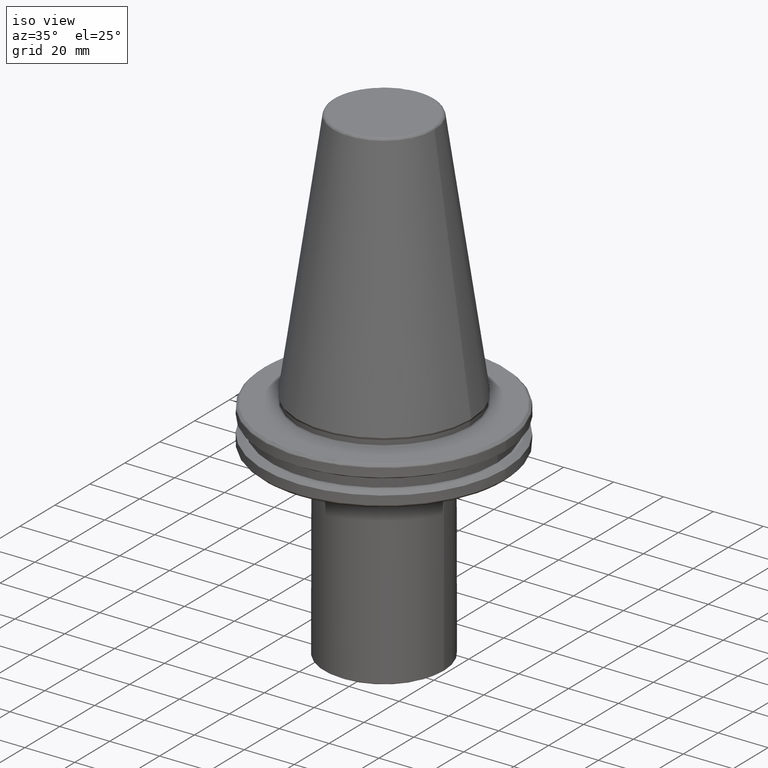
[diagram: clean part render]
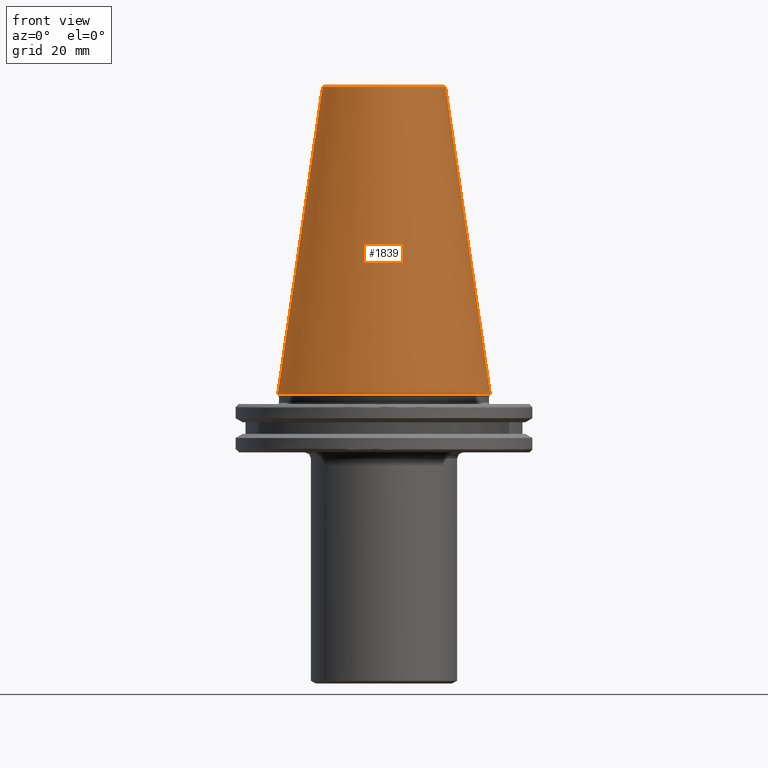
[diagram: tour spotlight — one face highlighted and labeled with its STEP entity id]
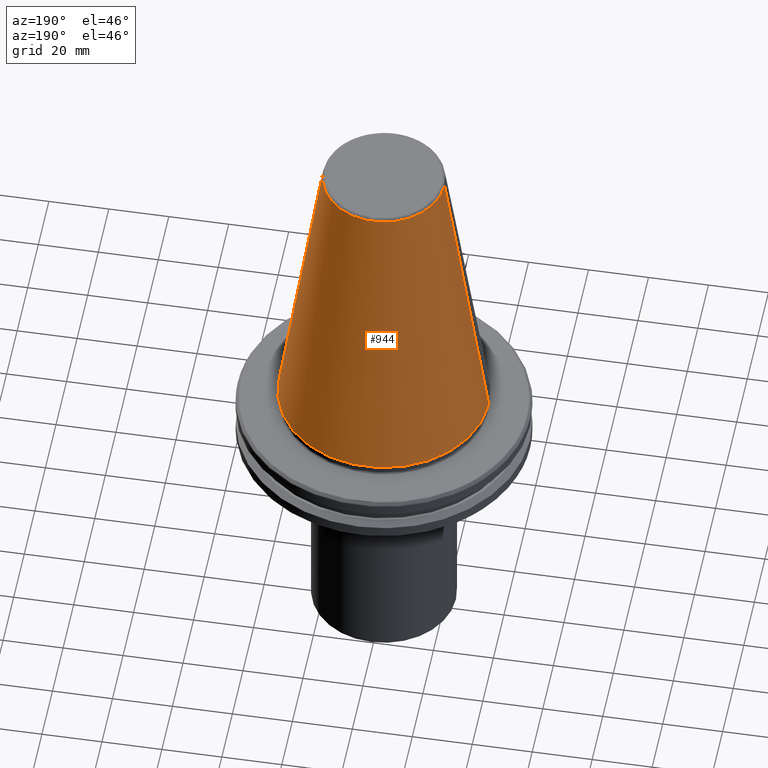
[diagram: tour spotlight — one face highlighted and labeled with its STEP entity id]
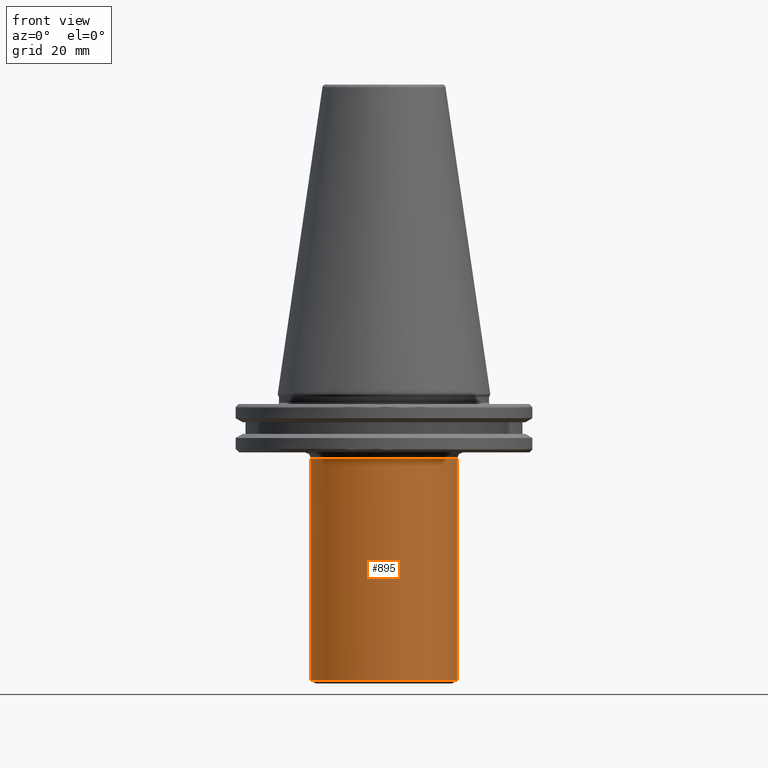
[diagram: tour spotlight — one face highlighted and labeled with its STEP entity id]
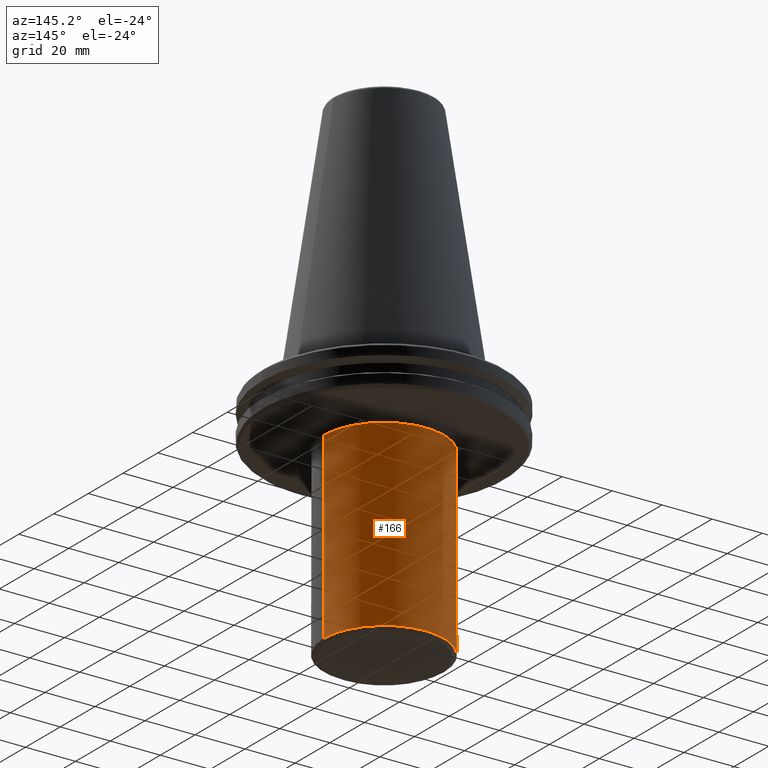
[diagram: tour spotlight — one face highlighted and labeled with its STEP entity id]
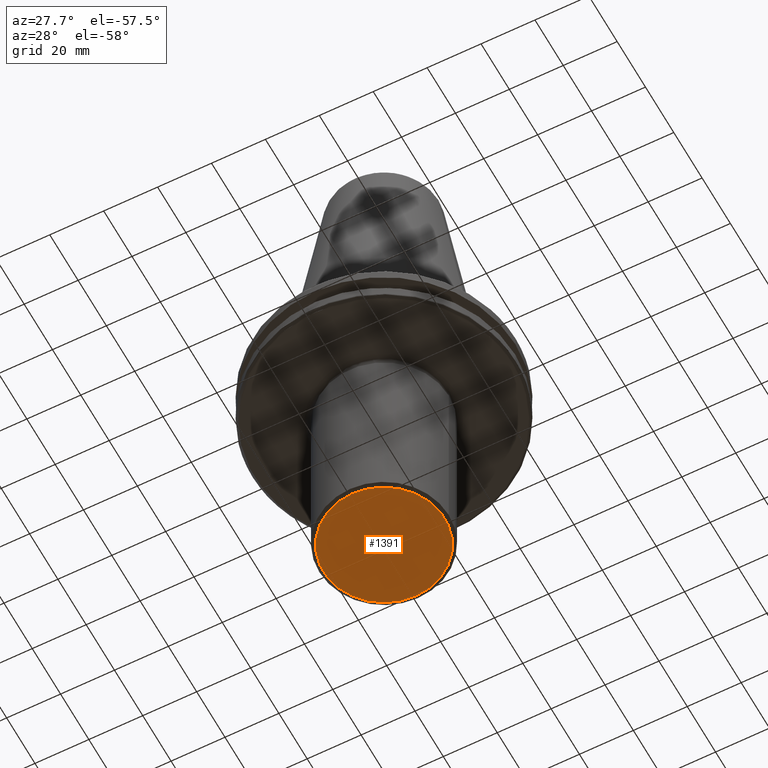
[diagram: tour spotlight — one face highlighted and labeled with its STEP entity id]
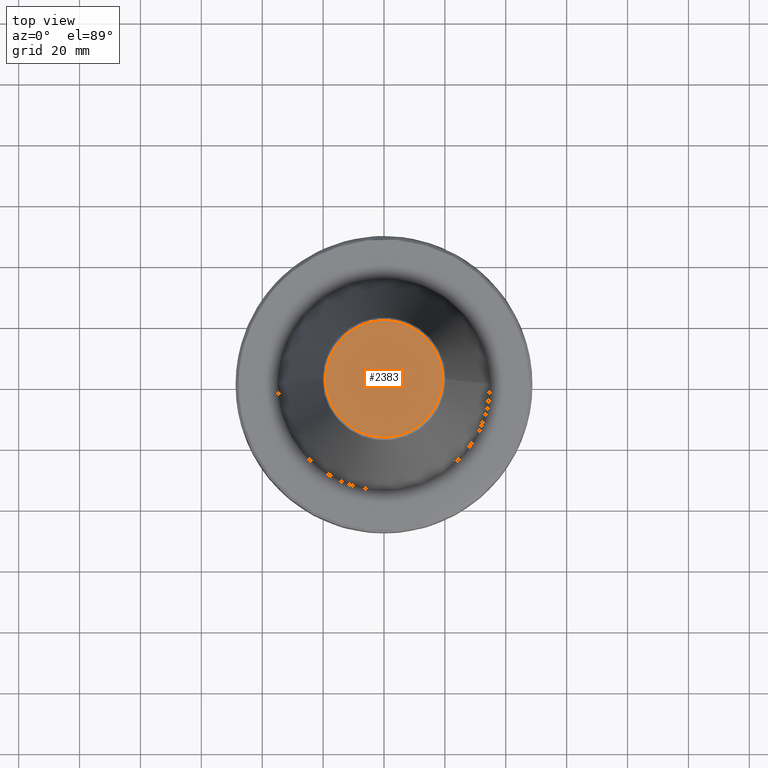
[diagram: tour spotlight — one face highlighted and labeled with its STEP entity id]
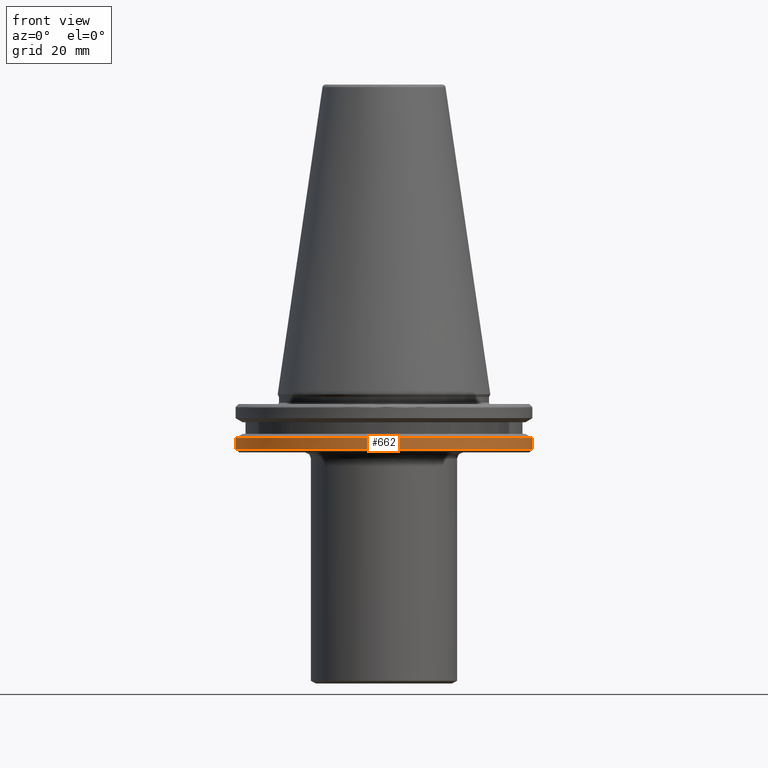
[diagram: tour spotlight — one face highlighted and labeled with its STEP entity id]
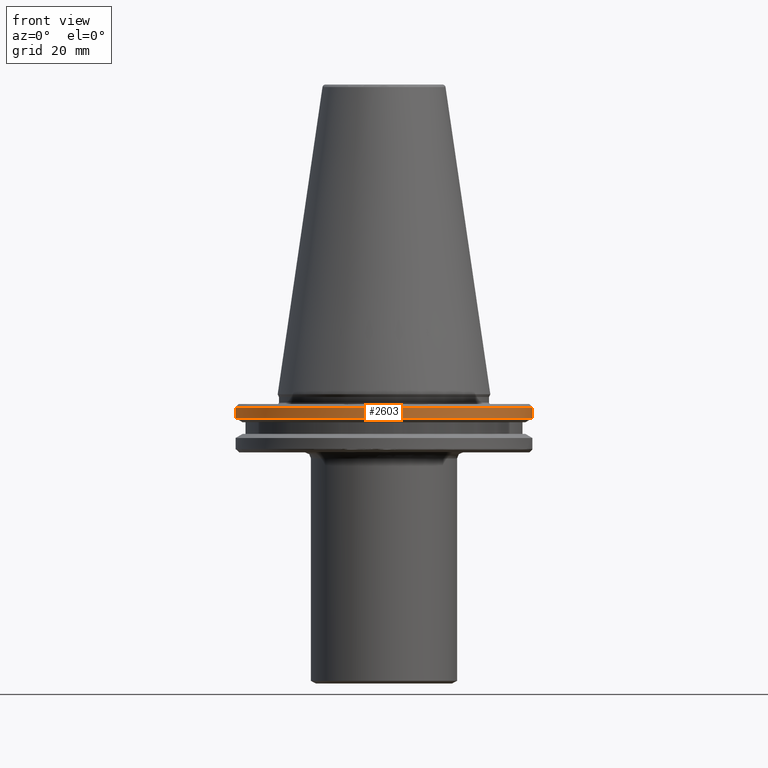
[diagram: tour spotlight — one face highlighted and labeled with its STEP entity id]
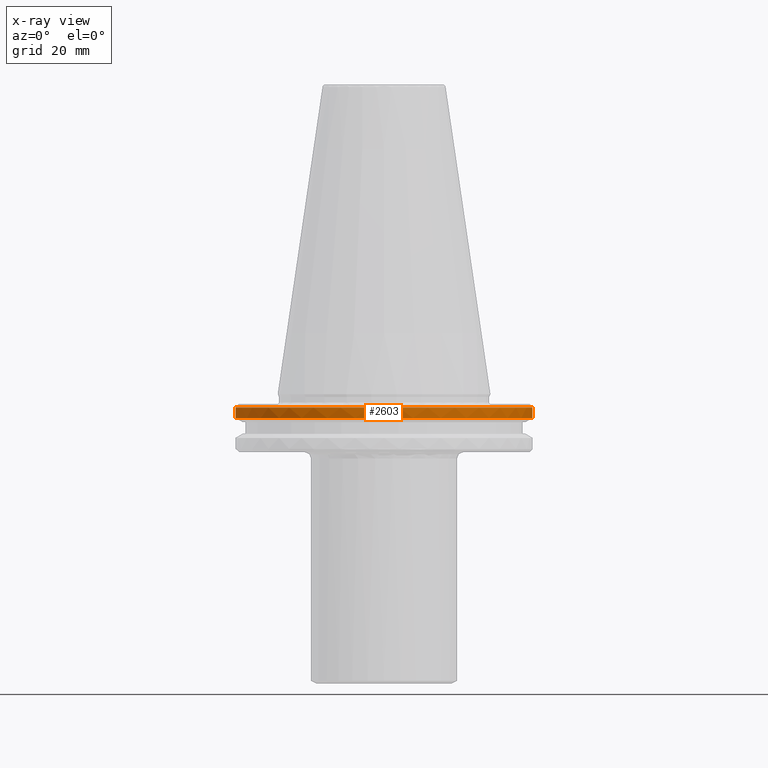
[diagram: x-ray of the same camera — body ghosted, this tour face saturated]
A machine part: a face-by-face anatomy tour. The part has 69 B-rep faces; the first image is the clean iso view, then the 8 largest visible faces are spotlighted one at a time (largest first), each with its STEP entity span.

Face 1 — front view, entity #1839. In plain terms, the highlighted conical surface has half-angle 8.297 deg.
Definition (entity closure, byte-faithful):
#5 = AXIS2_PLACEMENT_3D ( 'NONE', #261, #529, #478 ) ;
#175 = CARTESIAN_POINT ( 'NONE',  ( -34.92499999999999700, 0.0000000000000000000, -1.387778780781445700E-014 ) ) ;
#252 = EDGE_LOOP ( 'NONE', ( #1343, #2592, #1091, #2729 ) ) ;
#261 = CARTESIAN_POINT ( 'NONE',  ( 0.0000000000000000000, 0.0000000000000000000, 0.0000000000000000000 ) ) ;
#301 = DIRECTION ( 'NONE',  ( -1.000000000000000000, 0.0000000000000000000, 0.0000000000000000000 ) ) ;
#419 = EDGE_CURVE ( 'NONE', #2237, #534, #514, .T. ) ;
#478 = DIRECTION ( 'NONE',  ( -1.000000000000000000, 0.0000000000000000000, 0.0000000000000000000 ) ) ;
#514 = CIRCLE ( 'NONE', #2627, 20.21110778703758000 ) ;
#529 = DIRECTION ( 'NONE',  ( -0.0000000000000000000, -0.0000000000000000000, 1.000000000000000000 ) ) ;
#534 = VERTEX_POINT ( 'NONE', #1701 ) ;
#871 = EDGE_CURVE ( 'NONE', #2237, #2218, #2082, .T. ) ;
#1056 = DIRECTION ( 'NONE',  ( 0.0000000000000000000, 0.0000000000000000000, -1.000000000000000000 ) ) ;
#1091 = ORIENTED_EDGE ( 'NONE', *, *, #2355, .T. ) ;
#1318 = CARTESIAN_POINT ( 'NONE',  ( 0.0000000000000000000, 0.0000000000000000000, 100.8943082272673000 ) ) ;
#1343 = ORIENTED_EDGE ( 'NONE', *, *, #871, .F. ) ;
#1367 = CARTESIAN_POINT ( 'NONE',  ( 20.21110778703758000, 3.376112895941951000E-015, 100.8943082272673000 ) ) ;
#1378 = DIRECTION ( 'NONE',  ( 0.0000000000000000000, 0.0000000000000000000, -1.000000000000000000 ) ) ;
#1602 = CARTESIAN_POINT ( 'NONE',  ( 34.92500000000000400, 0.0000000000000000000, 0.0000000000000000000 ) ) ;
#1620 = CARTESIAN_POINT ( 'NONE',  ( 34.92499999999999700, 4.277078946022130900E-015, -1.387778780781445700E-014 ) ) ;
#1701 = CARTESIAN_POINT ( 'NONE',  ( -20.21110778703758000, 0.0000000000000000000, 100.8943082272673000 ) ) ;
#1766 = CIRCLE ( 'NONE', #5, 34.92499999999999700 ) ;
#1803 = DIRECTION ( 'NONE',  ( 0.1443082272673069400, 1.767266086135362400E-017, -0.9895327864921743500 ) ) ;
#1810 = LINE ( 'NONE', #175, #2670 ) ;
#1839 = ADVANCED_FACE ( 'NONE', ( #2974 ), #2280, .T. ) ;
#1922 = DIRECTION ( 'NONE',  ( -0.1443082272673069400, 0.0000000000000000000, -0.9895327864921743500 ) ) ;
#1941 = DIRECTION ( 'NONE',  ( -1.000000000000000000, 0.0000000000000000000, 0.0000000000000000000 ) ) ;
#2049 = EDGE_CURVE ( 'NONE', #2262, #2218, #1766, .T. ) ;
#2082 = LINE ( 'NONE', #1620, #2365 ) ;
#2218 = VERTEX_POINT ( 'NONE', #1602 ) ;
#2237 = VERTEX_POINT ( 'NONE', #1367 ) ;
#2262 = VERTEX_POINT ( 'NONE', #2843 ) ;
#2280 = CONICAL_SURFACE ( 'NONE', #3099, 34.92499999999999700, 0.1448138465474189400 ) ;
#2355 = EDGE_CURVE ( 'NONE', #534, #2262, #1810, .T. ) ;
#2365 = VECTOR ( 'NONE', #1803, 1000.000000000000000 ) ;
#2573 = CARTESIAN_POINT ( 'NONE',  ( 0.0000000000000000000, 0.0000000000000000000, -1.387778780781445700E-014 ) ) ;
#2592 = ORIENTED_EDGE ( 'NONE', *, *, #419, .T. ) ;
#2627 = AXIS2_PLACEMENT_3D ( 'NONE', #1318, #1378, #1941 ) ;
#2670 = VECTOR ( 'NONE', #1922, 1000.000000000000000 ) ;
#2729 = ORIENTED_EDGE ( 'NONE', *, *, #2049, .T. ) ;
#2843 = CARTESIAN_POINT ( 'NONE',  ( -34.92500000000000400, 4.277078946022131700E-015, 0.0000000000000000000 ) ) ;
#2974 = FACE_OUTER_BOUND ( 'NONE', #252, .T. ) ;
#3099 = AXIS2_PLACEMENT_3D ( 'NONE', #2573, #1056, #301 ) ;

Face 2 — auxiliary view, entity #944. In plain terms, the highlighted conical surface has half-angle 8.297 deg.
Definition (entity closure, byte-faithful):
#149 = AXIS2_PLACEMENT_3D ( 'NONE', #1182, #1021, #1152 ) ;
#152 = DIRECTION ( 'NONE',  ( -1.000000000000000000, 0.0000000000000000000, 0.0000000000000000000 ) ) ;
#175 = CARTESIAN_POINT ( 'NONE',  ( -34.92499999999999700, 0.0000000000000000000, -1.387778780781445700E-014 ) ) ;
#296 = CONICAL_SURFACE ( 'NONE', #149, 34.92499999999999700, 0.1448138465474189400 ) ;
#486 = FACE_OUTER_BOUND ( 'NONE', #1255, .T. ) ;
#534 = VERTEX_POINT ( 'NONE', #1701 ) ;
#871 = EDGE_CURVE ( 'NONE', #2237, #2218, #2082, .T. ) ;
#890 = DIRECTION ( 'NONE',  ( -1.000000000000000000, 0.0000000000000000000, 0.0000000000000000000 ) ) ;
#892 = DIRECTION ( 'NONE',  ( 0.0000000000000000000, 0.0000000000000000000, -1.000000000000000000 ) ) ;
#897 = CARTESIAN_POINT ( 'NONE',  ( 0.0000000000000000000, 0.0000000000000000000, 100.8943082272673000 ) ) ;
#935 = CIRCLE ( 'NONE', #1866, 20.21110778703758000 ) ;
#944 = ADVANCED_FACE ( 'NONE', ( #486 ), #296, .T. ) ;
#1021 = DIRECTION ( 'NONE',  ( 0.0000000000000000000, 0.0000000000000000000, -1.000000000000000000 ) ) ;
#1107 = EDGE_CURVE ( 'NONE', #534, #2237, #935, .T. ) ;
#1127 = ORIENTED_EDGE ( 'NONE', *, *, #871, .T. ) ;
#1152 = DIRECTION ( 'NONE',  ( -1.000000000000000000, 0.0000000000000000000, 0.0000000000000000000 ) ) ;
#1182 = CARTESIAN_POINT ( 'NONE',  ( 0.0000000000000000000, 0.0000000000000000000, -1.387778780781445700E-014 ) ) ;
#1185 = CIRCLE ( 'NONE', #2500, 34.92499999999999700 ) ;
#1255 = EDGE_LOOP ( 'NONE', ( #2719, #1127, #2800, #2446 ) ) ;
#1367 = CARTESIAN_POINT ( 'NONE',  ( 20.21110778703758000, 3.376112895941951000E-015, 100.8943082272673000 ) ) ;
#1602 = CARTESIAN_POINT ( 'NONE',  ( 34.92500000000000400, 0.0000000000000000000, 0.0000000000000000000 ) ) ;
#1620 = CARTESIAN_POINT ( 'NONE',  ( 34.92499999999999700, 4.277078946022130900E-015, -1.387778780781445700E-014 ) ) ;
#1649 = DIRECTION ( 'NONE',  ( -0.0000000000000000000, -0.0000000000000000000, 1.000000000000000000 ) ) ;
#1701 = CARTESIAN_POINT ( 'NONE',  ( -20.21110778703758000, 0.0000000000000000000, 100.8943082272673000 ) ) ;
#1803 = DIRECTION ( 'NONE',  ( 0.1443082272673069400, 1.767266086135362400E-017, -0.9895327864921743500 ) ) ;
#1810 = LINE ( 'NONE', #175, #2670 ) ;
#1866 = AXIS2_PLACEMENT_3D ( 'NONE', #897, #892, #890 ) ;
#1922 = DIRECTION ( 'NONE',  ( -0.1443082272673069400, 0.0000000000000000000, -0.9895327864921743500 ) ) ;
#2082 = LINE ( 'NONE', #1620, #2365 ) ;
#2218 = VERTEX_POINT ( 'NONE', #1602 ) ;
#2237 = VERTEX_POINT ( 'NONE', #1367 ) ;
#2262 = VERTEX_POINT ( 'NONE', #2843 ) ;
#2331 = EDGE_CURVE ( 'NONE', #2218, #2262, #1185, .T. ) ;
#2355 = EDGE_CURVE ( 'NONE', #534, #2262, #1810, .T. ) ;
#2365 = VECTOR ( 'NONE', #1803, 1000.000000000000000 ) ;
#2446 = ORIENTED_EDGE ( 'NONE', *, *, #2355, .F. ) ;
#2500 = AXIS2_PLACEMENT_3D ( 'NONE', #3080, #1649, #152 ) ;
#2670 = VECTOR ( 'NONE', #1922, 1000.000000000000000 ) ;
#2719 = ORIENTED_EDGE ( 'NONE', *, *, #1107, .T. ) ;
#2800 = ORIENTED_EDGE ( 'NONE', *, *, #2331, .T. ) ;
#2843 = CARTESIAN_POINT ( 'NONE',  ( -34.92500000000000400, 4.277078946022131700E-015, 0.0000000000000000000 ) ) ;
#3080 = CARTESIAN_POINT ( 'NONE',  ( 0.0000000000000000000, 0.0000000000000000000, 0.0000000000000000000 ) ) ;

Face 3 — front view, entity #895. In plain terms, the highlighted cylindrical surface (partial cylindrical patch) has radius 24 mm, axis along (0, 0, 1).
Definition (entity closure, byte-faithful):
#140 = ORIENTED_EDGE ( 'NONE', *, *, #2535, .T. ) ;
#250 = EDGE_CURVE ( 'NONE', #275, #509, #1837, .T. ) ;
#275 = VERTEX_POINT ( 'NONE', #2179 ) ;
#348 = EDGE_CURVE ( 'NONE', #509, #1484, #2432, .T. ) ;
#428 = CARTESIAN_POINT ( 'NONE',  ( 24.00000000000000700, 0.0000000000000000000, -21.10000000000000900 ) ) ;
#453 = AXIS2_PLACEMENT_3D ( 'NONE', #2018, #2486, #2069 ) ;
#509 = VERTEX_POINT ( 'NONE', #1430 ) ;
#544 = DIRECTION ( 'NONE',  ( 1.000000000000000000, 0.0000000000000000000, 0.0000000000000000000 ) ) ;
#549 = DIRECTION ( 'NONE',  ( 0.0000000000000000000, 0.0000000000000000000, 1.000000000000000000 ) ) ;
#559 = CARTESIAN_POINT ( 'NONE',  ( 0.0000000000000000000, 0.0000000000000000000, -94.13397459621556600 ) ) ;
#629 = AXIS2_PLACEMENT_3D ( 'NONE', #2736, #1260, #2956 ) ;
#766 = CIRCLE ( 'NONE', #629, 24.00000000000000700 ) ;
#849 = VECTOR ( 'NONE', #2472, 1000.000000000000000 ) ;
#857 = ORIENTED_EDGE ( 'NONE', *, *, #2148, .F. ) ;
#860 = CARTESIAN_POINT ( 'NONE',  ( -24.00000000000000000, 2.939152317953647900E-015, -94.13397459621556600 ) ) ;
#885 = FACE_OUTER_BOUND ( 'NONE', #3053, .T. ) ;
#895 = ADVANCED_FACE ( 'NONE', ( #885 ), #2934, .T. ) ;
#1050 = DIRECTION ( 'NONE',  ( 0.0000000000000000000, 0.0000000000000000000, 1.000000000000000000 ) ) ;
#1075 = CIRCLE ( 'NONE', #1242, 24.00000000000000000 ) ;
#1149 = CARTESIAN_POINT ( 'NONE',  ( -24.00000000000000700, 2.939152317953648700E-015, -21.10000000000000900 ) ) ;
#1157 = VERTEX_POINT ( 'NONE', #860 ) ;
#1173 = ORIENTED_EDGE ( 'NONE', *, *, #250, .T. ) ;
#1227 = VECTOR ( 'NONE', #2584, 1000.000000000000000 ) ;
#1242 = AXIS2_PLACEMENT_3D ( 'NONE', #559, #549, #544 ) ;
#1260 = DIRECTION ( 'NONE',  ( 0.0000000000000000000, 0.0000000000000000000, -1.000000000000000000 ) ) ;
#1317 = DIRECTION ( 'NONE',  ( 1.000000000000000000, 0.0000000000000000000, 0.0000000000000000000 ) ) ;
#1376 = EDGE_CURVE ( 'NONE', #1157, #275, #1075, .T. ) ;
#1430 = CARTESIAN_POINT ( 'NONE',  ( 24.00000000000000000, 0.0000000000000000000, -94.13397459621556600 ) ) ;
#1448 = ORIENTED_EDGE ( 'NONE', *, *, #348, .T. ) ;
#1484 = VERTEX_POINT ( 'NONE', #428 ) ;
#1488 = VERTEX_POINT ( 'NONE', #1149 ) ;
#1837 = CIRCLE ( 'NONE', #453, 24.00000000000000000 ) ;
#2018 = CARTESIAN_POINT ( 'NONE',  ( 0.0000000000000000000, 0.0000000000000000000, -94.13397459621556600 ) ) ;
#2019 = ORIENTED_EDGE ( 'NONE', *, *, #1376, .T. ) ;
#2069 = DIRECTION ( 'NONE',  ( 1.000000000000000000, 0.0000000000000000000, 0.0000000000000000000 ) ) ;
#2099 = CARTESIAN_POINT ( 'NONE',  ( -24.00000000000000000, 2.939152317953647900E-015, 0.0000000000000000000 ) ) ;
#2148 = EDGE_CURVE ( 'NONE', #1157, #1488, #2501, .T. ) ;
#2151 = AXIS2_PLACEMENT_3D ( 'NONE', #2728, #1050, #1317 ) ;
#2179 = CARTESIAN_POINT ( 'NONE',  ( 0.0000000000000000000, -24.00000000000002500, -94.13397459621556600 ) ) ;
#2432 = LINE ( 'NONE', #2488, #849 ) ;
#2472 = DIRECTION ( 'NONE',  ( 0.0000000000000000000, 0.0000000000000000000, 1.000000000000000000 ) ) ;
#2486 = DIRECTION ( 'NONE',  ( 0.0000000000000000000, 0.0000000000000000000, 1.000000000000000000 ) ) ;
#2488 = CARTESIAN_POINT ( 'NONE',  ( 24.00000000000000000, 0.0000000000000000000, 0.0000000000000000000 ) ) ;
#2501 = LINE ( 'NONE', #2099, #1227 ) ;
#2535 = EDGE_CURVE ( 'NONE', #1484, #1488, #766, .T. ) ;
#2584 = DIRECTION ( 'NONE',  ( 0.0000000000000000000, 0.0000000000000000000, 1.000000000000000000 ) ) ;
#2728 = CARTESIAN_POINT ( 'NONE',  ( 0.0000000000000000000, 0.0000000000000000000, 0.0000000000000000000 ) ) ;
#2736 = CARTESIAN_POINT ( 'NONE',  ( 0.0000000000000000000, 0.0000000000000000000, -21.10000000000000900 ) ) ;
#2934 = CYLINDRICAL_SURFACE ( 'NONE', #2151, 24.00000000000000000 ) ;
#2956 = DIRECTION ( 'NONE',  ( -1.000000000000000000, 0.0000000000000000000, 0.0000000000000000000 ) ) ;
#3053 = EDGE_LOOP ( 'NONE', ( #857, #2019, #1173, #1448, #140 ) ) ;

Face 4 — auxiliary view, entity #166. In plain terms, the highlighted cylindrical surface (partial cylindrical patch) has radius 24 mm, axis along (0, 0, 1).
Definition (entity closure, byte-faithful):
#129 = AXIS2_PLACEMENT_3D ( 'NONE', #1897, #2008, #1581 ) ;
#166 = ADVANCED_FACE ( 'NONE', ( #2375 ), #776, .T. ) ;
#315 = AXIS2_PLACEMENT_3D ( 'NONE', #2393, #911, #2631 ) ;
#348 = EDGE_CURVE ( 'NONE', #509, #1484, #2432, .T. ) ;
#428 = CARTESIAN_POINT ( 'NONE',  ( 24.00000000000000700, 0.0000000000000000000, -21.10000000000000900 ) ) ;
#509 = VERTEX_POINT ( 'NONE', #1430 ) ;
#661 = CIRCLE ( 'NONE', #2538, 24.00000000000000000 ) ;
#697 = DIRECTION ( 'NONE',  ( 0.0000000000000000000, 0.0000000000000000000, 1.000000000000000000 ) ) ;
#776 = CYLINDRICAL_SURFACE ( 'NONE', #129, 24.00000000000000000 ) ;
#823 = ORIENTED_EDGE ( 'NONE', *, *, #2348, .T. ) ;
#849 = VECTOR ( 'NONE', #2472, 1000.000000000000000 ) ;
#860 = CARTESIAN_POINT ( 'NONE',  ( -24.00000000000000000, 2.939152317953647900E-015, -94.13397459621556600 ) ) ;
#911 = DIRECTION ( 'NONE',  ( 0.0000000000000000000, 0.0000000000000000000, 1.000000000000000000 ) ) ;
#932 = EDGE_CURVE ( 'NONE', #1488, #1484, #3027, .T. ) ;
#1010 = DIRECTION ( 'NONE',  ( -1.000000000000000000, 0.0000000000000000000, 0.0000000000000000000 ) ) ;
#1014 = DIRECTION ( 'NONE',  ( 0.0000000000000000000, 0.0000000000000000000, -1.000000000000000000 ) ) ;
#1018 = CARTESIAN_POINT ( 'NONE',  ( 0.0000000000000000000, 0.0000000000000000000, -21.10000000000000900 ) ) ;
#1149 = CARTESIAN_POINT ( 'NONE',  ( -24.00000000000000700, 2.939152317953648700E-015, -21.10000000000000900 ) ) ;
#1157 = VERTEX_POINT ( 'NONE', #860 ) ;
#1227 = VECTOR ( 'NONE', #2584, 1000.000000000000000 ) ;
#1389 = EDGE_LOOP ( 'NONE', ( #1963, #3093, #2688, #2673, #823 ) ) ;
#1430 = CARTESIAN_POINT ( 'NONE',  ( 24.00000000000000000, 0.0000000000000000000, -94.13397459621556600 ) ) ;
#1484 = VERTEX_POINT ( 'NONE', #428 ) ;
#1488 = VERTEX_POINT ( 'NONE', #1149 ) ;
#1581 = DIRECTION ( 'NONE',  ( 1.000000000000000000, 0.0000000000000000000, 0.0000000000000000000 ) ) ;
#1650 = CARTESIAN_POINT ( 'NONE',  ( 2.939152317953644700E-015, 23.99999999999997500, -94.13397459621556600 ) ) ;
#1897 = CARTESIAN_POINT ( 'NONE',  ( 0.0000000000000000000, 0.0000000000000000000, 0.0000000000000000000 ) ) ;
#1963 = ORIENTED_EDGE ( 'NONE', *, *, #2259, .T. ) ;
#2008 = DIRECTION ( 'NONE',  ( 0.0000000000000000000, 0.0000000000000000000, 1.000000000000000000 ) ) ;
#2099 = CARTESIAN_POINT ( 'NONE',  ( -24.00000000000000000, 2.939152317953647900E-015, 0.0000000000000000000 ) ) ;
#2148 = EDGE_CURVE ( 'NONE', #1157, #1488, #2501, .T. ) ;
#2183 = CARTESIAN_POINT ( 'NONE',  ( 0.0000000000000000000, 0.0000000000000000000, -94.13397459621556600 ) ) ;
#2211 = AXIS2_PLACEMENT_3D ( 'NONE', #1018, #1014, #1010 ) ;
#2259 = EDGE_CURVE ( 'NONE', #2978, #1157, #2678, .T. ) ;
#2348 = EDGE_CURVE ( 'NONE', #509, #2978, #661, .T. ) ;
#2375 = FACE_OUTER_BOUND ( 'NONE', #1389, .T. ) ;
#2393 = CARTESIAN_POINT ( 'NONE',  ( 0.0000000000000000000, 0.0000000000000000000, -94.13397459621556600 ) ) ;
#2427 = DIRECTION ( 'NONE',  ( 1.000000000000000000, 0.0000000000000000000, 0.0000000000000000000 ) ) ;
#2432 = LINE ( 'NONE', #2488, #849 ) ;
#2472 = DIRECTION ( 'NONE',  ( 0.0000000000000000000, 0.0000000000000000000, 1.000000000000000000 ) ) ;
#2488 = CARTESIAN_POINT ( 'NONE',  ( 24.00000000000000000, 0.0000000000000000000, 0.0000000000000000000 ) ) ;
#2501 = LINE ( 'NONE', #2099, #1227 ) ;
#2538 = AXIS2_PLACEMENT_3D ( 'NONE', #2183, #697, #2427 ) ;
#2584 = DIRECTION ( 'NONE',  ( 0.0000000000000000000, 0.0000000000000000000, 1.000000000000000000 ) ) ;
#2631 = DIRECTION ( 'NONE',  ( 1.000000000000000000, 0.0000000000000000000, 0.0000000000000000000 ) ) ;
#2673 = ORIENTED_EDGE ( 'NONE', *, *, #348, .F. ) ;
#2678 = CIRCLE ( 'NONE', #315, 24.00000000000000000 ) ;
#2688 = ORIENTED_EDGE ( 'NONE', *, *, #932, .T. ) ;
#2978 = VERTEX_POINT ( 'NONE', #1650 ) ;
#3027 = CIRCLE ( 'NONE', #2211, 24.00000000000000700 ) ;
#3093 = ORIENTED_EDGE ( 'NONE', *, *, #2148, .T. ) ;

Face 5 — auxiliary view, entity #1391. In plain terms, the highlighted planar face has unit normal (0, 0, -1).
Definition (entity closure, byte-faithful):
#99 = CARTESIAN_POINT ( 'NONE',  ( 2.847303808017596500E-015, 22.50000000000000400, -95.00000000000000000 ) ) ;
#276 = FACE_OUTER_BOUND ( 'NONE', #1407, .T. ) ;
#536 = DIRECTION ( 'NONE',  ( -1.000000000000000000, 0.0000000000000000000, -0.0000000000000000000 ) ) ;
#540 = DIRECTION ( 'NONE',  ( 0.0000000000000000000, 0.0000000000000000000, -1.000000000000000000 ) ) ;
#560 = CARTESIAN_POINT ( 'NONE',  ( 0.0000000000000000000, -22.50000000000000000, -95.00000000000000000 ) ) ;
#571 = PLANE ( 'NONE',  #1634 ) ;
#686 = DIRECTION ( 'NONE',  ( 0.0000000000000000000, -2.891205793294678300E-016, 1.000000000000000000 ) ) ;
#1120 = CARTESIAN_POINT ( 'NONE',  ( 0.0000000000000000000, -22.50000000000000400, -95.00000000000000000 ) ) ;
#1206 = AXIS2_PLACEMENT_3D ( 'NONE', #2171, #686, #2420 ) ;
#1391 = ADVANCED_FACE ( 'NONE', ( #276 ), #571, .T. ) ;
#1407 = EDGE_LOOP ( 'NONE', ( #2766, #1595 ) ) ;
#1438 = DIRECTION ( 'NONE',  ( 0.0000000000000000000, -2.891205793294678300E-016, 1.000000000000000000 ) ) ;
#1442 = CIRCLE ( 'NONE', #1206, 22.50000000000000400 ) ;
#1474 = CIRCLE ( 'NONE', #2726, 22.50000000000000400 ) ;
#1595 = ORIENTED_EDGE ( 'NONE', *, *, #2958, .F. ) ;
#1634 = AXIS2_PLACEMENT_3D ( 'NONE', #560, #540, #536 ) ;
#1877 = VERTEX_POINT ( 'NONE', #1120 ) ;
#1948 = VERTEX_POINT ( 'NONE', #99 ) ;
#2171 = CARTESIAN_POINT ( 'NONE',  ( 0.0000000000000000000, 2.503857664561903300E-016, -95.00000000000000000 ) ) ;
#2371 = EDGE_CURVE ( 'NONE', #1877, #1948, #1474, .T. ) ;
#2420 = DIRECTION ( 'NONE',  ( 0.0000000000000000000, -1.000000000000000000, 0.0000000000000000000 ) ) ;
#2726 = AXIS2_PLACEMENT_3D ( 'NONE', #2908, #1438, #3109 ) ;
#2766 = ORIENTED_EDGE ( 'NONE', *, *, #2371, .F. ) ;
#2908 = CARTESIAN_POINT ( 'NONE',  ( 0.0000000000000000000, 2.503857664561903300E-016, -95.00000000000000000 ) ) ;
#2958 = EDGE_CURVE ( 'NONE', #1948, #1877, #1442, .T. ) ;
#3109 = DIRECTION ( 'NONE',  ( 0.0000000000000000000, -1.000000000000000000, 0.0000000000000000000 ) ) ;

Face 6 — top view, entity #2383. In plain terms, the highlighted planar face has unit normal (0, 0, 1).
Definition (entity closure, byte-faithful):
#73 = EDGE_CURVE ( 'NONE', #2016, #552, #2040, .T. ) ;
#187 = DIRECTION ( 'NONE',  ( 1.000000000000000000, 0.0000000000000000000, -0.0000000000000000000 ) ) ;
#552 = VERTEX_POINT ( 'NONE', #1705 ) ;
#596 = FACE_OUTER_BOUND ( 'NONE', #830, .T. ) ;
#694 = CARTESIAN_POINT ( 'NONE',  ( 19.22157500054540000, 0.0000000000000000000, 101.7499999999999900 ) ) ;
#712 = CARTESIAN_POINT ( 'NONE',  ( 19.22157500054540000, 0.0000000000000000000, 101.7499999999999900 ) ) ;
#713 = ORIENTED_EDGE ( 'NONE', *, *, #1213, .F. ) ;
#714 = CARTESIAN_POINT ( 'NONE',  ( 19.22157500054540000, 38.44315000109079300, 101.7500000000000000 ) ) ;
#722 = CARTESIAN_POINT ( 'NONE',  ( 0.0000000000000000000, 7.346249770921763000E-014, 101.7500000000000000 ) ) ;
#738 = CARTESIAN_POINT ( 'NONE',  ( -19.22157500054540000, 2.378200593091452200E-015, 101.7499999999999900 ) ) ;
#767 = CARTESIAN_POINT ( 'NONE',  ( -19.22157500054539600, 38.44315000109079300, 101.7500000000000000 ) ) ;
#830 = EDGE_LOOP ( 'NONE', ( #713, #2105 ) ) ;
#969 = PLANE ( 'NONE',  #1439 ) ;
#1213 = EDGE_CURVE ( 'NONE', #552, #2016, #2110, .T. ) ;
#1439 = AXIS2_PLACEMENT_3D ( 'NONE', #722, #1679, #187 ) ;
#1679 = DIRECTION ( 'NONE',  ( 0.0000000000000000000, 0.0000000000000000000, 1.000000000000000000 ) ) ;
#1705 = CARTESIAN_POINT ( 'NONE',  ( -19.22157500054540000, 2.378200593091452200E-015, 101.7499999999999900 ) ) ;
#2016 = VERTEX_POINT ( 'NONE', #694 ) ;
#2040 =( BOUNDED_CURVE ( )  B_SPLINE_CURVE ( 3, ( #2376, #2660, #3164, #2093 ),
 .UNSPECIFIED., .F., .T. ) 
 B_SPLINE_CURVE_WITH_KNOTS ( ( 4, 4 ),
 ( 0.0000000000000000000, 1.000000000000000000 ),
 .UNSPECIFIED. ) 
 CURVE ( )  GEOMETRIC_REPRESENTATION_ITEM ( )  RATIONAL_B_SPLINE_CURVE ( ( 1.000000000000000000, 0.3333333333333333700, 0.3333333333333333700, 1.000000000000000000 ) ) 
 REPRESENTATION_ITEM ( '' )  );
#2093 = CARTESIAN_POINT ( 'NONE',  ( -19.22157500054540000, 2.378200593091452200E-015, 101.7499999999999900 ) ) ;
#2105 = ORIENTED_EDGE ( 'NONE', *, *, #73, .F. ) ;
#2110 =( BOUNDED_CURVE ( )  B_SPLINE_CURVE ( 3, ( #738, #767, #714, #712 ),
 .UNSPECIFIED., .F., .T. ) 
 B_SPLINE_CURVE_WITH_KNOTS ( ( 4, 4 ),
 ( 0.0000000000000000000, 1.000000000000000000 ),
 .UNSPECIFIED. ) 
 CURVE ( )  GEOMETRIC_REPRESENTATION_ITEM ( )  RATIONAL_B_SPLINE_CURVE ( ( 1.000000000000000000, 0.3333333333333333700, 0.3333333333333333700, 1.000000000000000000 ) ) 
 REPRESENTATION_ITEM ( '' )  );
#2376 = CARTESIAN_POINT ( 'NONE',  ( 19.22157500054540000, 0.0000000000000000000, 101.7499999999999900 ) ) ;
#2383 = ADVANCED_FACE ( 'NONE', ( #596 ), #969, .T. ) ;
#2660 = CARTESIAN_POINT ( 'NONE',  ( 19.22157500054540000, -38.44315000109079300, 101.7500000000000000 ) ) ;
#3164 = CARTESIAN_POINT ( 'NONE',  ( -19.22157500054540000, -38.44315000109079300, 101.7500000000000000 ) ) ;

Face 7 — front view, entity #662. In plain terms, the highlighted cylindrical surface (partial cylindrical patch) has radius 48.75 mm, axis along (0, 0, 1).
Definition (entity closure, byte-faithful):
#110 = DIRECTION ( 'NONE',  ( 1.000000000000000000, 0.0000000000000000000, 0.0000000000000000000 ) ) ;
#153 = AXIS2_PLACEMENT_3D ( 'NONE', #3047, #1599, #110 ) ;
#161 = EDGE_CURVE ( 'NONE', #1269, #468, #701, .T. ) ;
#303 = EDGE_LOOP ( 'NONE', ( #2154, #1831, #1935, #2666, #2827, #2987 ) ) ;
#399 = DIRECTION ( 'NONE',  ( 1.000000000000000000, 0.0000000000000000000, 0.0000000000000000000 ) ) ;
#455 = CARTESIAN_POINT ( 'NONE',  ( 0.0000000000000000000, 0.0000000000000000000, -17.93431457505076300 ) ) ;
#468 = VERTEX_POINT ( 'NONE', #1686 ) ;
#515 = VERTEX_POINT ( 'NONE', #1689 ) ;
#590 = DIRECTION ( 'NONE',  ( -0.0000000000000000000, -0.0000000000000000000, 1.000000000000000000 ) ) ;
#662 = ADVANCED_FACE ( 'NONE', ( #1899 ), #912, .T. ) ;
#687 = CARTESIAN_POINT ( 'NONE',  ( -48.75000000000000000, 5.970153145843347100E-015, -17.93431457505076300 ) ) ;
#701 = LINE ( 'NONE', #2489, #2452 ) ;
#716 = VERTEX_POINT ( 'NONE', #2985 ) ;
#740 = CIRCLE ( 'NONE', #2687, 48.75000000000000000 ) ;
#753 = CARTESIAN_POINT ( 'NONE',  ( 48.75000000000000000, 0.0000000000000000000, 113.5216080541959500 ) ) ;
#891 = CARTESIAN_POINT ( 'NONE',  ( 0.0000000000000000000, 0.0000000000000000000, -14.34759526419166200 ) ) ;
#912 = CYLINDRICAL_SURFACE ( 'NONE', #1145, 48.75000000000000000 ) ;
#996 = DIRECTION ( 'NONE',  ( 0.0000000000000000000, 0.0000000000000000000, 1.000000000000000000 ) ) ;
#1005 = VECTOR ( 'NONE', #996, 1000.000000000000000 ) ;
#1006 = DIRECTION ( 'NONE',  ( 0.0000000000000000000, 0.0000000000000000000, 1.000000000000000000 ) ) ;
#1134 = DIRECTION ( 'NONE',  ( -1.000000000000000000, 0.0000000000000000000, 0.0000000000000000000 ) ) ;
#1145 = AXIS2_PLACEMENT_3D ( 'NONE', #2361, #1925, #2798 ) ;
#1168 = AXIS2_PLACEMENT_3D ( 'NONE', #2492, #1006, #2720 ) ;
#1194 = DIRECTION ( 'NONE',  ( 0.0000000000000000000, 0.0000000000000000000, 1.000000000000000000 ) ) ;
#1269 = VERTEX_POINT ( 'NONE', #687 ) ;
#1477 = VERTEX_POINT ( 'NONE', #2663 ) ;
#1599 = DIRECTION ( 'NONE',  ( -0.0000000000000000000, -0.0000000000000000000, 1.000000000000000000 ) ) ;
#1605 = LINE ( 'NONE', #753, #1005 ) ;
#1648 = CIRCLE ( 'NONE', #1168, 48.75000000000000000 ) ;
#1686 = CARTESIAN_POINT ( 'NONE',  ( -48.75000000000001400, 5.970153145843347900E-015, -14.34759526419166200 ) ) ;
#1689 = CARTESIAN_POINT ( 'NONE',  ( -46.83796378645139000, -13.51915856623735300, -17.93431457505076300 ) ) ;
#1831 = ORIENTED_EDGE ( 'NONE', *, *, #1950, .T. ) ;
#1879 = CARTESIAN_POINT ( 'NONE',  ( 46.87302845420868600, -13.39707817141269400, -17.93431457505076300 ) ) ;
#1899 = FACE_OUTER_BOUND ( 'NONE', #303, .T. ) ;
#1925 = DIRECTION ( 'NONE',  ( 0.0000000000000000000, 0.0000000000000000000, 1.000000000000000000 ) ) ;
#1935 = ORIENTED_EDGE ( 'NONE', *, *, #2451, .T. ) ;
#1950 = EDGE_CURVE ( 'NONE', #1269, #515, #740, .T. ) ;
#2154 = ORIENTED_EDGE ( 'NONE', *, *, #161, .F. ) ;
#2349 = CIRCLE ( 'NONE', #153, 48.75000000000000000 ) ;
#2361 = CARTESIAN_POINT ( 'NONE',  ( 0.0000000000000000000, 0.0000000000000000000, 113.5216080541959500 ) ) ;
#2408 = CIRCLE ( 'NONE', #2714, 48.75000000000000000 ) ;
#2451 = EDGE_CURVE ( 'NONE', #515, #2950, #1648, .T. ) ;
#2452 = VECTOR ( 'NONE', #1194, 1000.000000000000000 ) ;
#2456 = EDGE_CURVE ( 'NONE', #1477, #716, #1605, .T. ) ;
#2489 = CARTESIAN_POINT ( 'NONE',  ( -48.75000000000000000, 5.970153145843347100E-015, 113.5216080541959500 ) ) ;
#2492 = CARTESIAN_POINT ( 'NONE',  ( 0.0000000000000000000, 0.0000000000000000000, -17.93431457505076300 ) ) ;
#2578 = EDGE_CURVE ( 'NONE', #468, #716, #2408, .T. ) ;
#2581 = EDGE_CURVE ( 'NONE', #2950, #1477, #2349, .T. ) ;
#2609 = DIRECTION ( 'NONE',  ( -0.0000000000000000000, -0.0000000000000000000, 1.000000000000000000 ) ) ;
#2663 = CARTESIAN_POINT ( 'NONE',  ( 48.75000000000000000, 0.0000000000000000000, -17.93431457505076300 ) ) ;
#2666 = ORIENTED_EDGE ( 'NONE', *, *, #2581, .T. ) ;
#2687 = AXIS2_PLACEMENT_3D ( 'NONE', #455, #590, #399 ) ;
#2714 = AXIS2_PLACEMENT_3D ( 'NONE', #891, #2609, #1134 ) ;
#2720 = DIRECTION ( 'NONE',  ( 1.000000000000000000, 0.0000000000000000000, 0.0000000000000000000 ) ) ;
#2798 = DIRECTION ( 'NONE',  ( 1.000000000000000000, 0.0000000000000000000, 0.0000000000000000000 ) ) ;
#2827 = ORIENTED_EDGE ( 'NONE', *, *, #2456, .T. ) ;
#2950 = VERTEX_POINT ( 'NONE', #1879 ) ;
#2985 = CARTESIAN_POINT ( 'NONE',  ( 48.75000000000001400, 0.0000000000000000000, -14.34759526419166200 ) ) ;
#2987 = ORIENTED_EDGE ( 'NONE', *, *, #2578, .F. ) ;
#3047 = CARTESIAN_POINT ( 'NONE',  ( 0.0000000000000000000, 0.0000000000000000000, -17.93431457505076300 ) ) ;

Face 8 — front view, entity #2603. An x-ray twin of the same camera follows (body ghosted, this face saturated) — the face is partly hidden behind the body. In plain terms, the highlighted cylindrical surface (partial cylindrical patch) has radius 48.75 mm, axis along (0, 0, 1).
Definition (entity closure, byte-faithful):
#93 = CARTESIAN_POINT ( 'NONE',  ( 0.0000000000000000000, 0.0000000000000000000, -4.365685424949240300 ) ) ;
#162 = ORIENTED_EDGE ( 'NONE', *, *, #2968, .F. ) ;
#225 = CARTESIAN_POINT ( 'NONE',  ( 0.0000000000000000000, 0.0000000000000000000, -4.365685424949236700 ) ) ;
#238 = VERTEX_POINT ( 'NONE', #2880 ) ;
#280 = DIRECTION ( 'NONE',  ( 0.0000000000000000000, 0.0000000000000000000, 1.000000000000000000 ) ) ;
#380 = CYLINDRICAL_SURFACE ( 'NONE', #506, 48.75000000000000000 ) ;
#496 = ORIENTED_EDGE ( 'NONE', *, *, #1510, .F. ) ;
#506 = AXIS2_PLACEMENT_3D ( 'NONE', #2140, #1117, #640 ) ;
#553 = CARTESIAN_POINT ( 'NONE',  ( -48.75000000000000000, 5.970153145843347100E-015, -4.365685424949236700 ) ) ;
#574 = DIRECTION ( 'NONE',  ( 1.000000000000000000, 0.0000000000000000000, 0.0000000000000000000 ) ) ;
#640 = DIRECTION ( 'NONE',  ( 1.000000000000000000, 0.0000000000000000000, 0.0000000000000000000 ) ) ;
#746 = LINE ( 'NONE', #1240, #1566 ) ;
#913 = CARTESIAN_POINT ( 'NONE',  ( 0.0000000000000000000, 0.0000000000000000000, -7.852404735808352000 ) ) ;
#937 = CARTESIAN_POINT ( 'NONE',  ( -46.83796378645139000, -13.51915856623735500, -4.365685424949238500 ) ) ;
#1057 = CARTESIAN_POINT ( 'NONE',  ( 46.87302845420869300, -13.39707817141269600, -4.365685424949236700 ) ) ;
#1078 = DIRECTION ( 'NONE',  ( -0.0000000000000000000, -0.0000000000000000000, 1.000000000000000000 ) ) ;
#1117 = DIRECTION ( 'NONE',  ( 0.0000000000000000000, 0.0000000000000000000, 1.000000000000000000 ) ) ;
#1130 = DIRECTION ( 'NONE',  ( 0.0000000000000000000, 0.0000000000000000000, 1.000000000000000000 ) ) ;
#1158 = DIRECTION ( 'NONE',  ( 1.000000000000000000, 0.0000000000000000000, 0.0000000000000000000 ) ) ;
#1164 = DIRECTION ( 'NONE',  ( 0.0000000000000000000, 0.0000000000000000000, 1.000000000000000000 ) ) ;
#1181 = CARTESIAN_POINT ( 'NONE',  ( 0.0000000000000000000, 0.0000000000000000000, -4.365685424949236700 ) ) ;
#1240 = CARTESIAN_POINT ( 'NONE',  ( -48.75000000000000000, 5.970153145843347100E-015, 113.5216080541959500 ) ) ;
#1341 = AXIS2_PLACEMENT_3D ( 'NONE', #1181, #2881, #1409 ) ;
#1409 = DIRECTION ( 'NONE',  ( 1.000000000000000000, 0.0000000000000000000, 0.0000000000000000000 ) ) ;
#1499 = CIRCLE ( 'NONE', #1715, 48.75000000000000000 ) ;
#1510 = EDGE_CURVE ( 'NONE', #2860, #238, #1499, .T. ) ;
#1534 = AXIS2_PLACEMENT_3D ( 'NONE', #913, #2633, #1158 ) ;
#1566 = VECTOR ( 'NONE', #1164, 1000.000000000000000 ) ;
#1680 = VECTOR ( 'NONE', #1130, 1000.000000000000000 ) ;
#1703 = LINE ( 'NONE', #2367, #1680 ) ;
#1715 = AXIS2_PLACEMENT_3D ( 'NONE', #225, #1078, #2385 ) ;
#1729 = VERTEX_POINT ( 'NONE', #1892 ) ;
#1892 = CARTESIAN_POINT ( 'NONE',  ( 48.75000000000000000, 0.0000000000000000000, -7.852404735808352000 ) ) ;
#1927 = EDGE_CURVE ( 'NONE', #2147, #3146, #746, .T. ) ;
#1945 = CIRCLE ( 'NONE', #2279, 48.75000000000000000 ) ;
#1979 = CIRCLE ( 'NONE', #1534, 48.75000000000000000 ) ;
#1996 = FACE_OUTER_BOUND ( 'NONE', #2035, .T. ) ;
#2035 = EDGE_LOOP ( 'NONE', ( #2753, #2707, #2249, #496, #2776, #162 ) ) ;
#2062 = EDGE_CURVE ( 'NONE', #2970, #2860, #1945, .T. ) ;
#2140 = CARTESIAN_POINT ( 'NONE',  ( 0.0000000000000000000, 0.0000000000000000000, 113.5216080541959500 ) ) ;
#2147 = VERTEX_POINT ( 'NONE', #2343 ) ;
#2249 = ORIENTED_EDGE ( 'NONE', *, *, #2760, .T. ) ;
#2279 = AXIS2_PLACEMENT_3D ( 'NONE', #93, #280, #574 ) ;
#2343 = CARTESIAN_POINT ( 'NONE',  ( -48.75000000000000000, 5.970153145843347100E-015, -7.852404735808352000 ) ) ;
#2367 = CARTESIAN_POINT ( 'NONE',  ( 48.75000000000000000, 0.0000000000000000000, 113.5216080541959500 ) ) ;
#2385 = DIRECTION ( 'NONE',  ( 1.000000000000000000, 0.0000000000000000000, 0.0000000000000000000 ) ) ;
#2603 = ADVANCED_FACE ( 'NONE', ( #1996 ), #380, .T. ) ;
#2633 = DIRECTION ( 'NONE',  ( 0.0000000000000000000, 0.0000000000000000000, 1.000000000000000000 ) ) ;
#2707 = ORIENTED_EDGE ( 'NONE', *, *, #2914, .T. ) ;
#2753 = ORIENTED_EDGE ( 'NONE', *, *, #1927, .F. ) ;
#2760 = EDGE_CURVE ( 'NONE', #1729, #238, #1703, .T. ) ;
#2776 = ORIENTED_EDGE ( 'NONE', *, *, #2062, .F. ) ;
#2860 = VERTEX_POINT ( 'NONE', #1057 ) ;
#2880 = CARTESIAN_POINT ( 'NONE',  ( 48.75000000000000000, 0.0000000000000000000, -4.365685424949236700 ) ) ;
#2881 = DIRECTION ( 'NONE',  ( -0.0000000000000000000, -0.0000000000000000000, 1.000000000000000000 ) ) ;
#2914 = EDGE_CURVE ( 'NONE', #2147, #1729, #1979, .T. ) ;
#2968 = EDGE_CURVE ( 'NONE', #3146, #2970, #3057, .T. ) ;
#2970 = VERTEX_POINT ( 'NONE', #937 ) ;
#3057 = CIRCLE ( 'NONE', #1341, 48.75000000000000000 ) ;
#3146 = VERTEX_POINT ( 'NONE', #553 ) ;